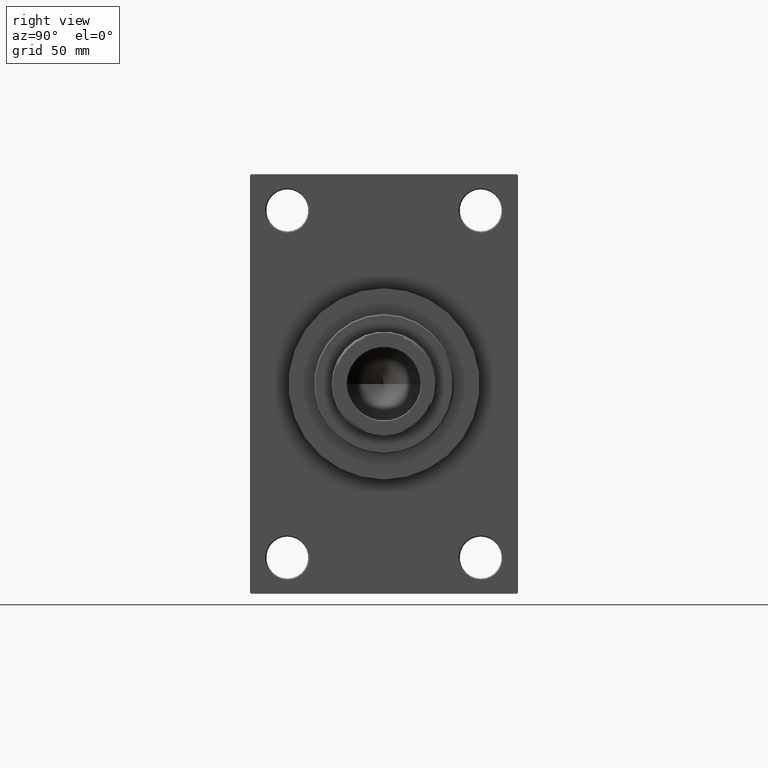
[diagram: clean part render]
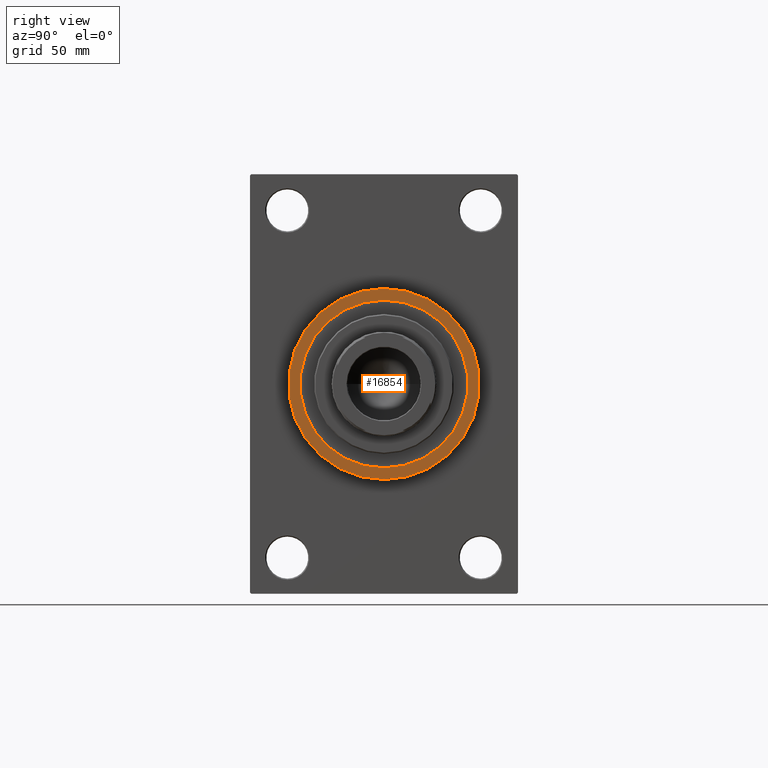
[diagram: same view with one face highlighted and labeled with its STEP entity id]
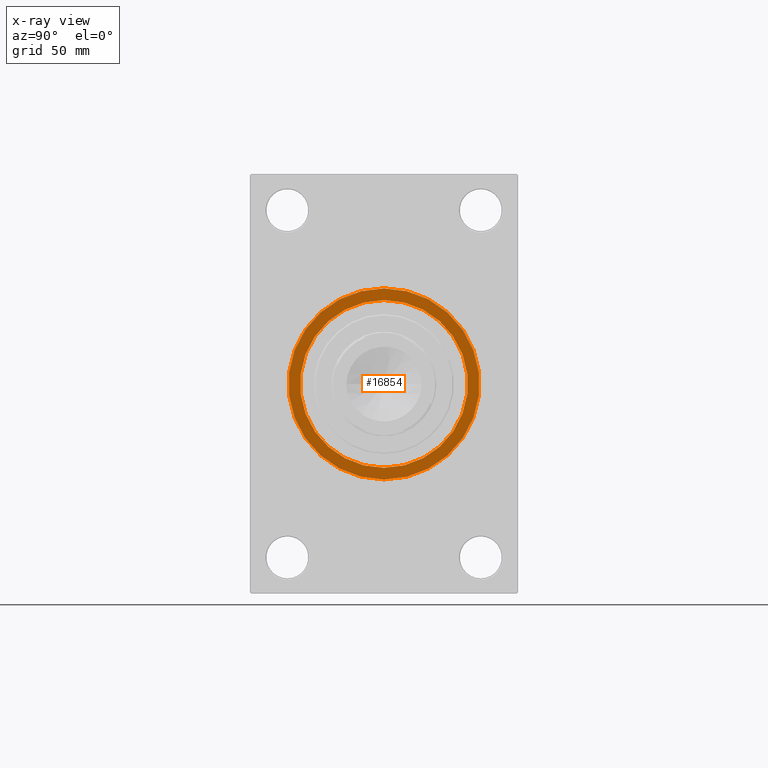
[diagram: x-ray of the same camera — body ghosted, the highlighted face saturated]
A machine part, right view. The second image highlights one B-rep face of the part: STEP entity #16854.
The next image is the same camera in x-ray: the body ghosted, the highlighted face saturated — about 0% of this face is hidden behind the body in this view.
In plain terms, the highlighted planar face has unit normal (1, 0, 0).
Its self-contained STEP definition (entity closure, byte-faithful):
#927 = VERTEX_POINT ( 'NONE', #12169 ) ;
#2069 = CARTESIAN_POINT ( 'NONE',  ( 179.0000000000000000, 0.000000000000000000, 0.000000000000000000 ) ) ;
#4059 = DIRECTION ( 'NONE',  ( 0.000000000000000000, 0.000000000000000000, -1.000000000000000000 ) ) ;
#6023 = FACE_BOUND ( 'NONE', #45870, .T. ) ;
#6266 = FACE_OUTER_BOUND ( 'NONE', #19100, .T. ) ;
#8176 = VERTEX_POINT ( 'NONE', #41494 ) ;
#8349 = EDGE_CURVE ( 'NONE', #33319, #26110, #37824, .T. ) ;
#9630 = PLANE ( 'NONE',  #47211 ) ;
#9688 = CARTESIAN_POINT ( 'NONE',  ( 179.0000000000000000, 0.000000000000000000, -36.00000000000000000 ) ) ;
#11290 = EDGE_CURVE ( 'NONE', #927, #8176, #37898, .T. ) ;
#12169 = CARTESIAN_POINT ( 'NONE',  ( 179.0000000000000000, 0.000000000000000000, 41.00000000000000000 ) ) ;
#13164 = ORIENTED_EDGE ( 'NONE', *, *, #11290, .T. ) ;
#13234 = DIRECTION ( 'NONE',  ( 0.000000000000000000, 0.000000000000000000, -1.000000000000000000 ) ) ;
#14631 = CARTESIAN_POINT ( 'NONE',  ( 179.0000000000000000, 0.000000000000000000, 0.000000000000000000 ) ) ;
#16854 = ADVANCED_FACE ( 'NONE', ( #6023, #6266 ), #9630, .T. ) ;
#18984 = ORIENTED_EDGE ( 'NONE', *, *, #8349, .F. ) ;
#19100 = EDGE_LOOP ( 'NONE', ( #13164, #37325 ) ) ;
#20348 = DIRECTION ( 'NONE',  ( 1.000000000000000000, 0.000000000000000000, 0.000000000000000000 ) ) ;
#20386 = AXIS2_PLACEMENT_3D ( 'NONE', #2069, #20348, #31465 ) ;
#22111 = EDGE_CURVE ( 'NONE', #8176, #927, #39653, .T. ) ;
#26110 = VERTEX_POINT ( 'NONE', #9688 ) ;
#31465 = DIRECTION ( 'NONE',  ( 0.000000000000000000, 0.000000000000000000, -1.000000000000000000 ) ) ;
#32287 = DIRECTION ( 'NONE',  ( 1.000000000000000000, 0.000000000000000000, 0.000000000000000000 ) ) ;
#33319 = VERTEX_POINT ( 'NONE', #34786 ) ;
#34786 = CARTESIAN_POINT ( 'NONE',  ( 179.0000000000000000, 4.408728476930470856E-15, 36.00000000000000000 ) ) ;
#37071 = EDGE_CURVE ( 'NONE', #26110, #33319, #45379, .T. ) ;
#37325 = ORIENTED_EDGE ( 'NONE', *, *, #22111, .T. ) ;
#37824 = CIRCLE ( 'NONE', #40900, 36.00000000000000000 ) ;
#37898 = CIRCLE ( 'NONE', #44077, 41.00000000000000000 ) ;
#38239 = DIRECTION ( 'NONE',  ( 1.000000000000000000, 0.000000000000000000, 0.000000000000000000 ) ) ;
#39653 = CIRCLE ( 'NONE', #20386, 41.00000000000000000 ) ;
#40677 = DIRECTION ( 'NONE',  ( 1.000000000000000000, 0.000000000000000000, 0.000000000000000000 ) ) ;
#40900 = AXIS2_PLACEMENT_3D ( 'NONE', #14631, #40677, #4059 ) ;
#41494 = CARTESIAN_POINT ( 'NONE',  ( 179.0000000000000000, 5.021051876504148963E-15, -41.00000000000000000 ) ) ;
#41770 = ORIENTED_EDGE ( 'NONE', *, *, #37071, .F. ) ;
#42320 = AXIS2_PLACEMENT_3D ( 'NONE', #43916, #42959, #47066 ) ;
#42959 = DIRECTION ( 'NONE',  ( 1.000000000000000000, 0.000000000000000000, 0.000000000000000000 ) ) ;
#43916 = CARTESIAN_POINT ( 'NONE',  ( 179.0000000000000000, 0.000000000000000000, 0.000000000000000000 ) ) ;
#44077 = AXIS2_PLACEMENT_3D ( 'NONE', #45250, #38239, #45968 ) ;
#45250 = CARTESIAN_POINT ( 'NONE',  ( 179.0000000000000000, 0.000000000000000000, 0.000000000000000000 ) ) ;
#45379 = CIRCLE ( 'NONE', #42320, 36.00000000000000000 ) ;
#45870 = EDGE_LOOP ( 'NONE', ( #41770, #18984 ) ) ;
#45968 = DIRECTION ( 'NONE',  ( 0.000000000000000000, 0.000000000000000000, -1.000000000000000000 ) ) ;
#46277 = CARTESIAN_POINT ( 'NONE',  ( 179.0000000000000000, 0.000000000000000000, 0.000000000000000000 ) ) ;
#47066 = DIRECTION ( 'NONE',  ( 0.000000000000000000, 0.000000000000000000, -1.000000000000000000 ) ) ;
#47211 = AXIS2_PLACEMENT_3D ( 'NONE', #46277, #32287, #13234 ) ;